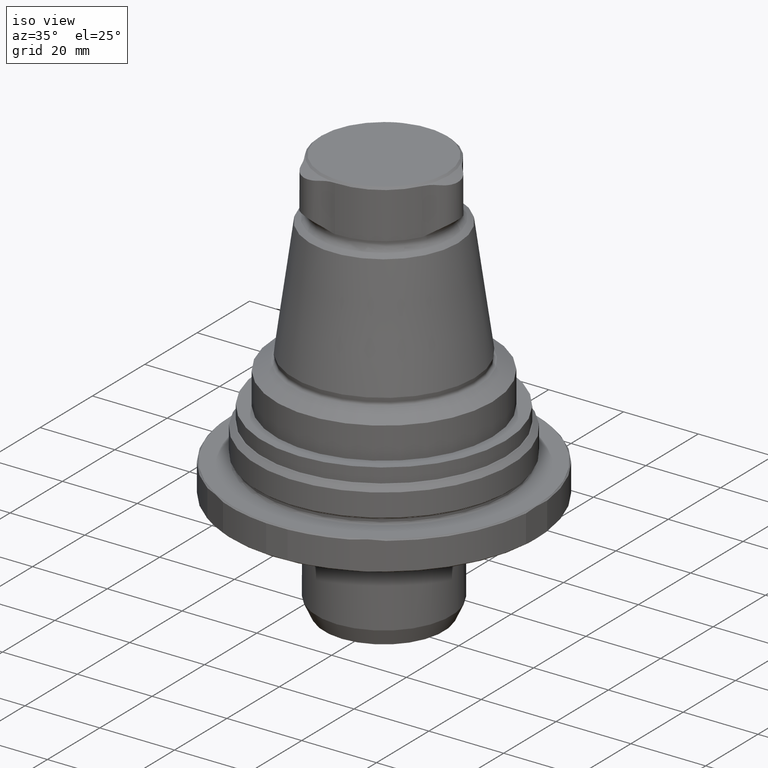
[diagram: clean part render]
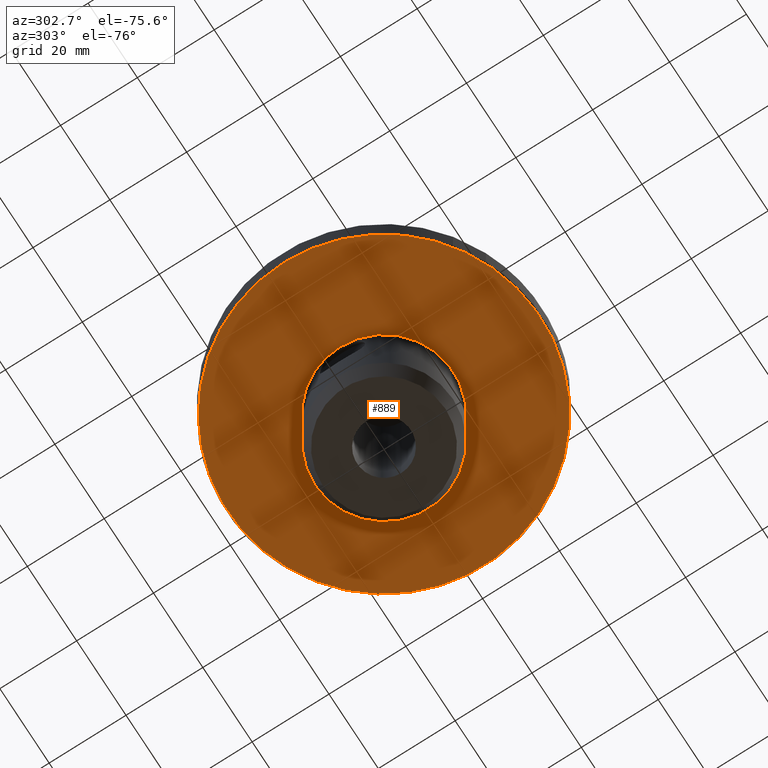
[diagram: tour spotlight — one face highlighted and labeled with its STEP entity id]
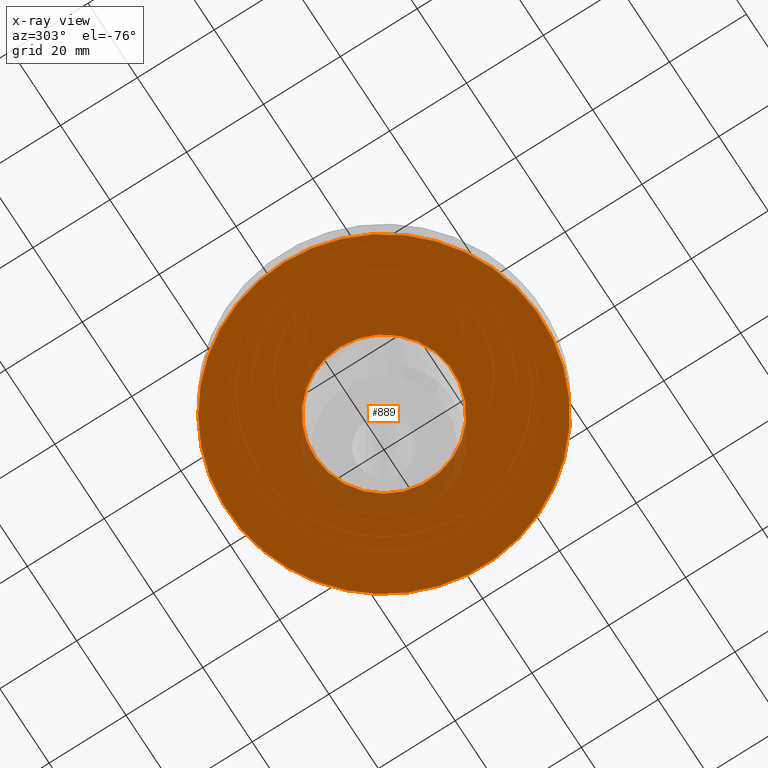
[diagram: x-ray of the same camera — body ghosted, this tour face saturated]
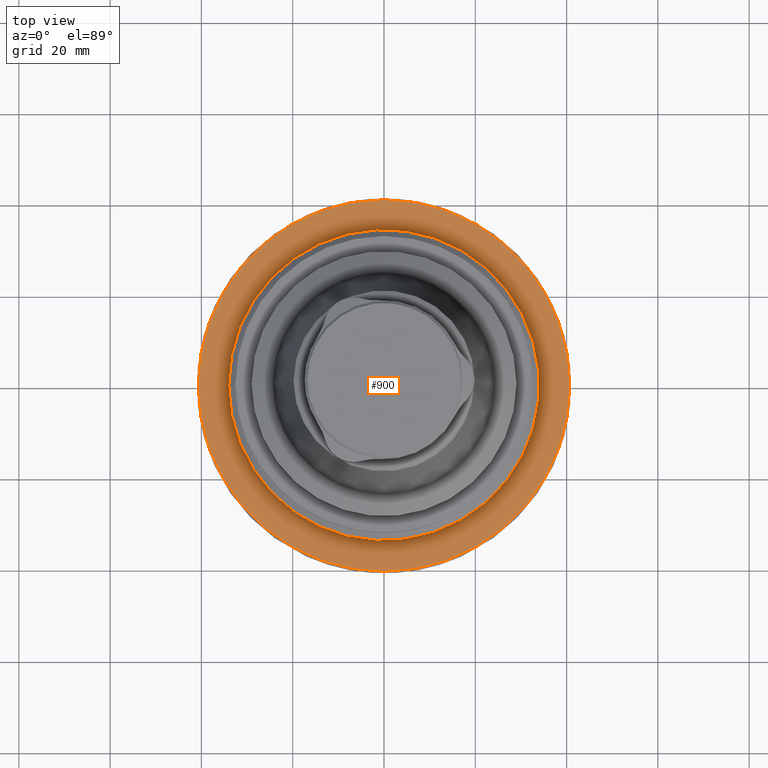
[diagram: tour spotlight — one face highlighted and labeled with its STEP entity id]
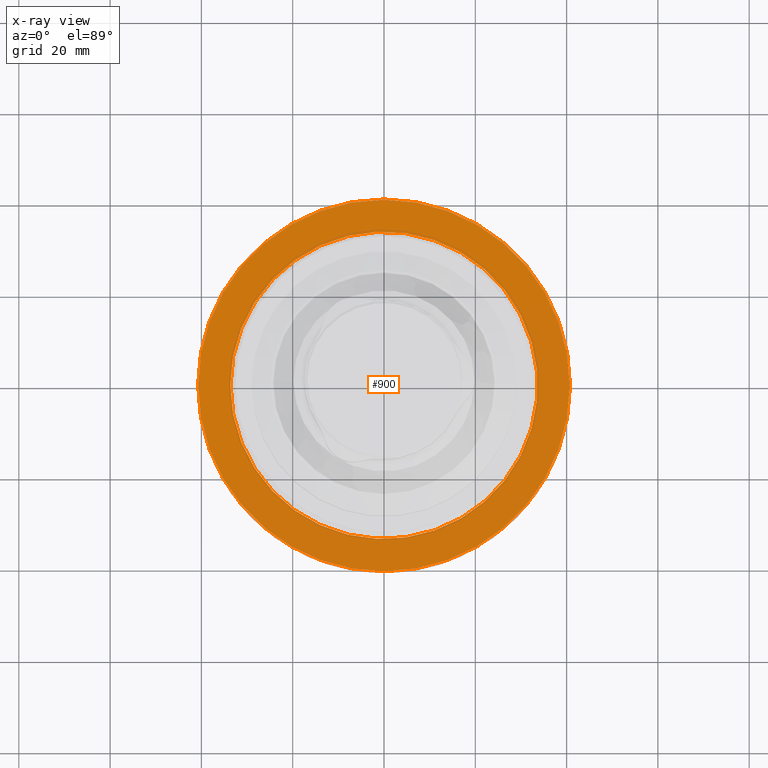
[diagram: x-ray of the same camera — body ghosted, this tour face saturated]
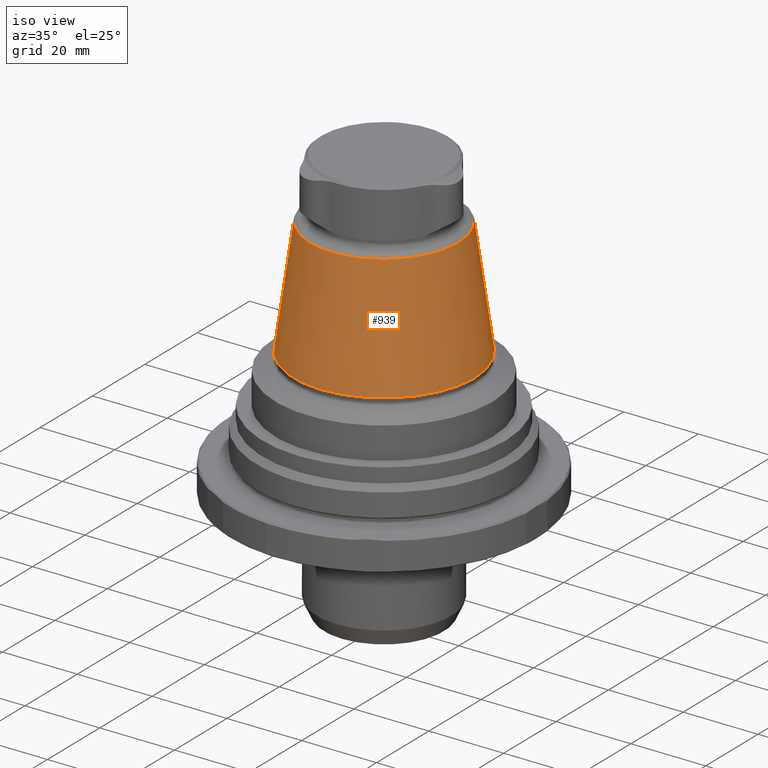
[diagram: tour spotlight — one face highlighted and labeled with its STEP entity id]
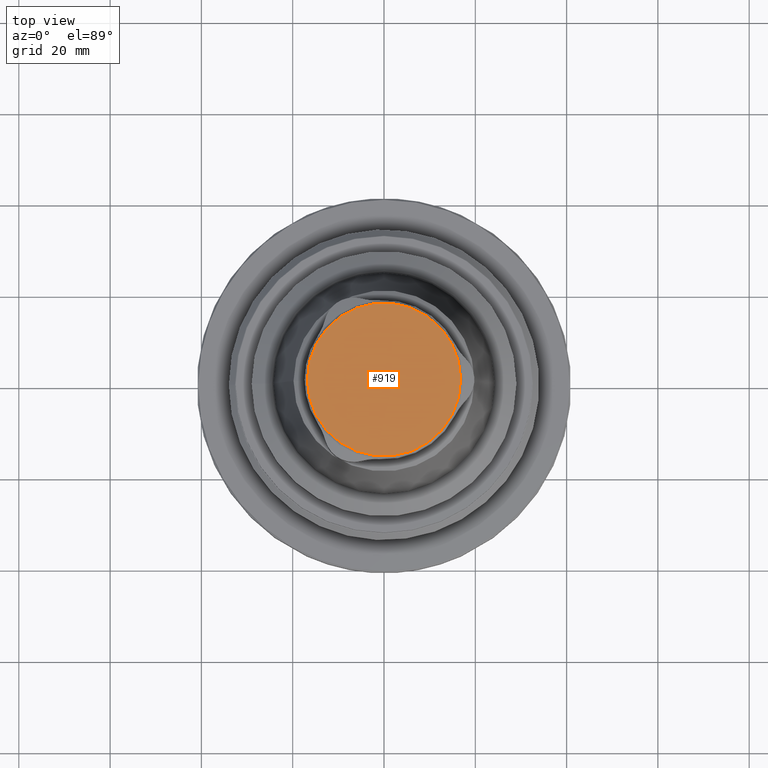
[diagram: tour spotlight — one face highlighted and labeled with its STEP entity id]
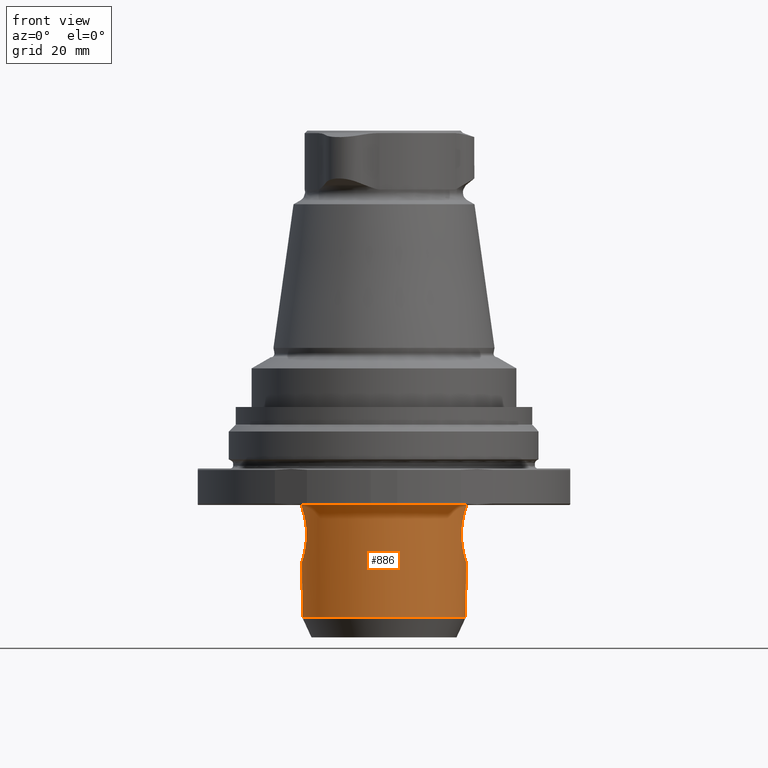
[diagram: tour spotlight — one face highlighted and labeled with its STEP entity id]
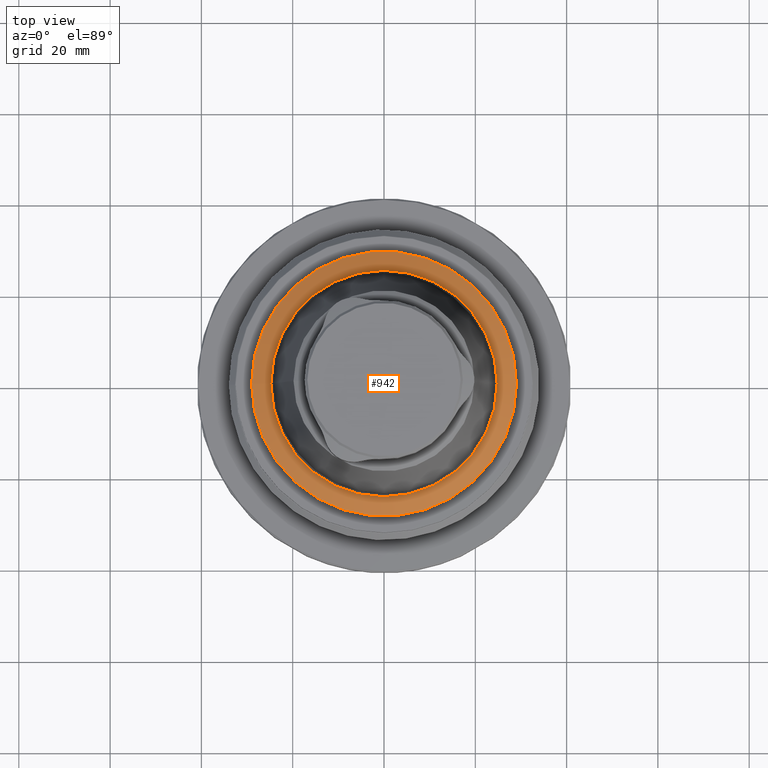
[diagram: tour spotlight — one face highlighted and labeled with its STEP entity id]
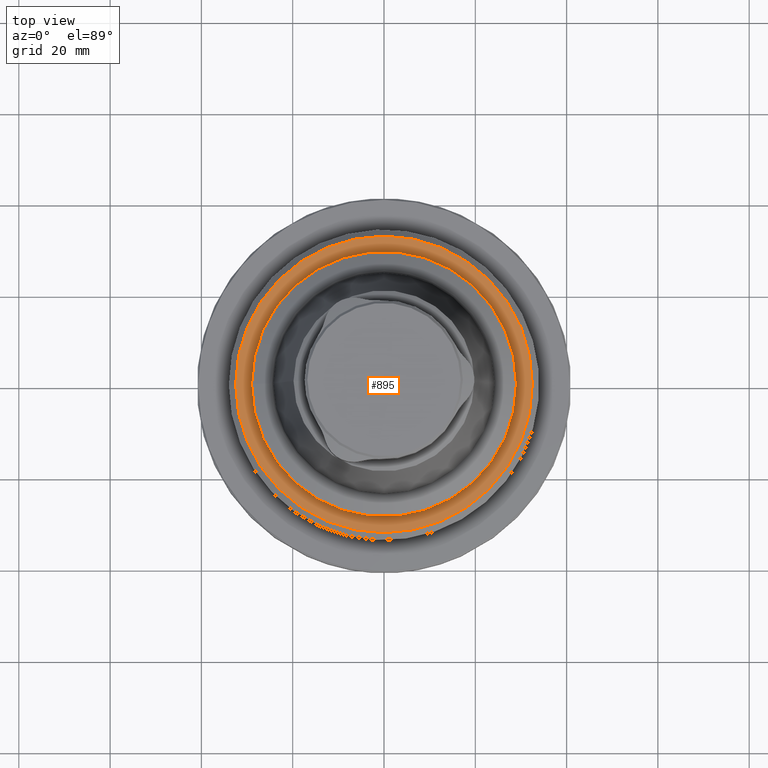
[diagram: tour spotlight — one face highlighted and labeled with its STEP entity id]
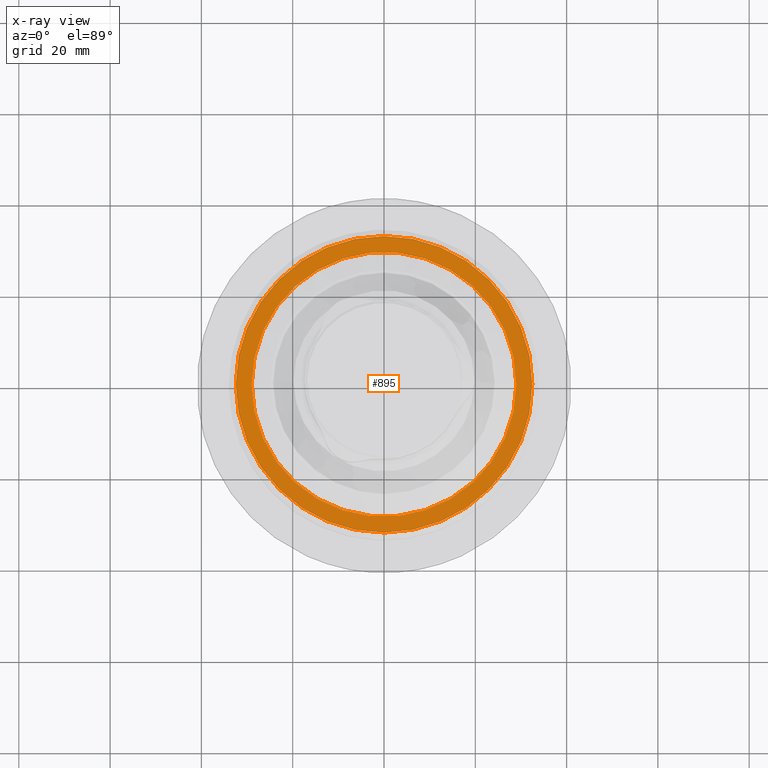
[diagram: x-ray of the same camera — body ghosted, this tour face saturated]
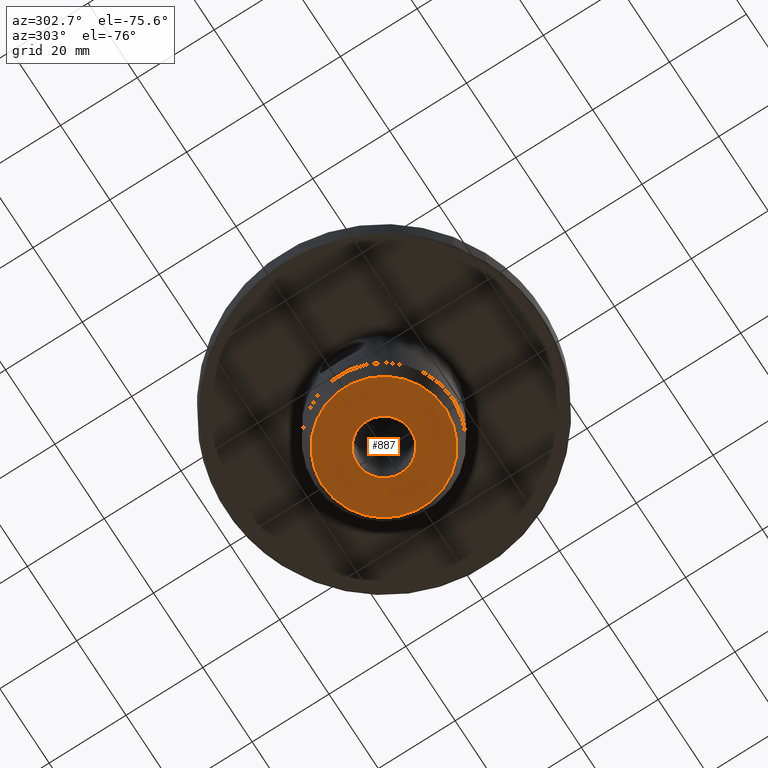
[diagram: tour spotlight — one face highlighted and labeled with its STEP entity id]
A machine part: a face-by-face anatomy tour. The part has 64 B-rep faces; the first image is the clean iso view, then the 8 largest visible faces are spotlighted one at a time (largest first), each with its STEP entity span.

Face 1 — auxiliary view, entity #889. An x-ray twin of the same camera follows (body ghosted, this face saturated) — the face is partly hidden behind the body. In plain terms, the highlighted planar face has unit normal (0, -0, -1).
Definition (entity closure, byte-faithful):
#96=PLANE('',#970);
#112=CIRCLE('',#964,18.);
#116=CIRCLE('',#971,40.7);
#173=ORIENTED_EDGE('',*,*,#412,.F.);
#174=ORIENTED_EDGE('',*,*,#417,.T.);
#412=EDGE_CURVE('',#535,#535,#112,.T.);
#417=EDGE_CURVE('',#540,#540,#116,.T.);
#535=VERTEX_POINT('',#1367);
#540=VERTEX_POINT('',#1398);
#676=EDGE_LOOP('',(#173));
#677=EDGE_LOOP('',(#174));
#771=FACE_BOUND('',#676,.T.);
#772=FACE_BOUND('',#677,.T.);
#889=ADVANCED_FACE('',(#771,#772),#96,.T.);
#964=AXIS2_PLACEMENT_3D('',#1366,#1084,#1085);
#970=AXIS2_PLACEMENT_3D('',#1396,#1096,#1097);
#971=AXIS2_PLACEMENT_3D('',#1397,#1098,#1099);
#1084=DIRECTION('',(1.22461692971323E-16,-7.49836836562635E-33,-1.));
#1085=DIRECTION('',(-1.,0.,-1.22461692971323E-16));
#1096=DIRECTION('',(1.22461692971323E-16,-7.49836836562635E-33,-1.));
#1097=DIRECTION('',(-1.,6.12303176911189E-17,-1.22461692971323E-16));
#1098=DIRECTION('',(-5.20001084984554E-33,-4.76419527885826E-18,-1.));
#1099=DIRECTION('',(-1.,0.,0.));
#1366=CARTESIAN_POINT('',(0.,0.,-8.99999999999999));
#1367=CARTESIAN_POINT('',(-18.,0.,-9.));
#1396=CARTESIAN_POINT('',(-30.5,1.86752468957913E-15,-9.));
#1397=CARTESIAN_POINT('',(7.88665112559661E-15,-8.38498369079058E-17,-9.00000000000001));
#1398=CARTESIAN_POINT('',(-40.7,-8.38498369079058E-17,-9.00000000000001));

Face 2 — top view, entity #900. An x-ray twin of the same camera follows (body ghosted, this face saturated) — the face is partly hidden behind the body. In plain terms, the highlighted planar face has unit normal (-0, -0, -1).
Definition (entity closure, byte-faithful):
#99=PLANE('',#993);
#127=CIRCLE('',#992,33.65);
#128=CIRCLE('',#994,40.7);
#195=ORIENTED_EDGE('',*,*,#428,.T.);
#196=ORIENTED_EDGE('',*,*,#429,.F.);
#428=EDGE_CURVE('',#551,#551,#127,.T.);
#429=EDGE_CURVE('',#552,#552,#128,.T.);
#551=VERTEX_POINT('',#1430);
#552=VERTEX_POINT('',#1433);
#698=EDGE_LOOP('',(#195));
#699=EDGE_LOOP('',(#196));
#793=FACE_BOUND('',#698,.T.);
#794=FACE_BOUND('',#699,.T.);
#900=ADVANCED_FACE('',(#793,#794),#99,.F.);
#992=AXIS2_PLACEMENT_3D('',#1429,#1140,#1141);
#993=AXIS2_PLACEMENT_3D('',#1431,#1142,#1143);
#994=AXIS2_PLACEMENT_3D('',#1432,#1144,#1145);
#1140=DIRECTION('',(-5.20001084984554E-33,-4.76419527885826E-18,-1.));
#1141=DIRECTION('',(-1.,0.,0.));
#1142=DIRECTION('',(-5.20001084984554E-33,-4.76419527885826E-18,-1.));
#1143=DIRECTION('',(-1.,0.,0.));
#1144=DIRECTION('',(-5.20001084984554E-33,-4.76419527885826E-18,-1.));
#1145=DIRECTION('',(-1.,0.,0.));
#1429=CARTESIAN_POINT('',(7.88665112559661E-15,-4.57362746770397E-17,-1.00000000000001));
#1430=CARTESIAN_POINT('',(-33.65,-4.57362746770397E-17,-1.00000000000001));
#1431=CARTESIAN_POINT('',(-33.65,-4.57362746770397E-17,-1.00000000000001));
#1432=CARTESIAN_POINT('',(7.88665112559661E-15,-4.57362746770397E-17,-1.00000000000001));
#1433=CARTESIAN_POINT('',(-40.7,-4.57362746770397E-17,-1.00000000000001));

Face 3 — iso view, entity #939. In plain terms, the highlighted conical surface has half-angle 7.95 deg.
Definition (entity closure, byte-faithful):
#92=CONICAL_SURFACE('',#1062,24.2110659529869,0.138753675533549);
#157=CIRCLE('',#1061,19.820622068747);
#158=CIRCLE('',#1063,24.2110659529869);
#392=ORIENTED_EDGE('',*,*,#526,.T.);
#393=ORIENTED_EDGE('',*,*,#527,.F.);
#526=EDGE_CURVE('',#618,#618,#157,.T.);
#527=EDGE_CURVE('',#619,#619,#158,.T.);
#618=VERTEX_POINT('',#1778);
#619=VERTEX_POINT('',#1781);
#744=EDGE_LOOP('',(#392));
#745=EDGE_LOOP('',(#393));
#839=FACE_BOUND('',#744,.T.);
#840=FACE_BOUND('',#745,.T.);
#939=ADVANCED_FACE('',(#839,#840),#92,.T.);
#1061=AXIS2_PLACEMENT_3D('',#1777,#1306,#1307);
#1062=AXIS2_PLACEMENT_3D('',#1779,#1308,#1309);
#1063=AXIS2_PLACEMENT_3D('',#1780,#1310,#1311);
#1306=DIRECTION('',(1.22461692971323E-16,-7.49836836562635E-33,-1.));
#1307=DIRECTION('',(-1.,6.12303176911189E-17,-1.22461692971323E-16));
#1308=DIRECTION('',(1.22461692971323E-16,-7.49836836562635E-33,-1.));
#1309=DIRECTION('',(-1.,6.12303176911189E-17,-1.22461692971323E-16));
#1310=DIRECTION('',(1.22461692971323E-16,-7.49836836562635E-33,-1.));
#1311=DIRECTION('',(-1.,6.12303176911189E-17,-1.22461692971323E-16));
#1777=CARTESIAN_POINT('',(1.97634923270405E-15,-1.21012491387068E-31,56.8624545642742));
#1778=CARTESIAN_POINT('',(-19.820622068747,1.21362298610498E-15,56.8624545642742));
#1779=CARTESIAN_POINT('',(5.82638272995627E-15,-3.56751265545271E-31,25.4237784865737));
#1780=CARTESIAN_POINT('',(5.82638272995627E-15,-3.56751265545271E-31,25.4237784865737));
#1781=CARTESIAN_POINT('',(-24.2110659529869,1.48245125994202E-15,25.4237784865737));

Face 4 — top view, entity #919. In plain terms, the highlighted planar face has unit normal (-0, 0, 1).
Definition (entity closure, byte-faithful):
#108=PLANE('',#1029);
#145=CIRCLE('',#1030,16.78);
#295=ORIENTED_EDGE('',*,*,#478,.F.);
#478=EDGE_CURVE('',#585,#585,#145,.T.);
#585=VERTEX_POINT('',#1582);
#720=EDGE_LOOP('',(#295));
#815=FACE_BOUND('',#720,.T.);
#919=ADVANCED_FACE('',(#815),#108,.T.);
#1029=AXIS2_PLACEMENT_3D('',#1580,#1230,#1231);
#1030=AXIS2_PLACEMENT_3D('',#1581,#1232,#1233);
#1230=DIRECTION('',(-1.22461692971323E-16,7.49836836562635E-33,1.));
#1231=DIRECTION('',(1.,-6.12303176911189E-17,1.22461692971323E-16));
#1232=DIRECTION('',(1.22461692971323E-16,-7.49836836562635E-33,-1.));
#1233=DIRECTION('',(-1.,6.12303176911189E-17,-1.22461692971323E-16));
#1580=CARTESIAN_POINT('',(-16.78,1.02744473085697E-15,73.));
#1581=CARTESIAN_POINT('',(1.18098243419732E-19,-7.23119296335328E-36,73.));
#1582=CARTESIAN_POINT('',(-16.78,1.02744473085697E-15,73.));

Face 5 — front view, entity #886. In plain terms, the highlighted cylindrical surface (bore or boss wall) has radius 18 mm, axis along (0, 0, -1).
Definition (entity closure, byte-faithful):
#112=CIRCLE('',#964,18.);
#113=CIRCLE('',#965,18.);
#165=ORIENTED_EDGE('',*,*,#411,.F.);
#166=ORIENTED_EDGE('',*,*,#412,.T.);
#167=ORIENTED_EDGE('',*,*,#413,.F.);
#168=ORIENTED_EDGE('',*,*,#414,.T.);
#411=EDGE_CURVE('',#534,#534,#626,.T.);
#412=EDGE_CURVE('',#535,#535,#112,.T.);
#413=EDGE_CURVE('',#536,#536,#113,.T.);
#414=EDGE_CURVE('',#537,#537,#627,.T.);
#534=VERTEX_POINT('',#1365);
#535=VERTEX_POINT('',#1367);
#536=VERTEX_POINT('',#1369);
#537=VERTEX_POINT('',#1389);
#626=B_SPLINE_CURVE_WITH_KNOTS('',3,(#1346,#1347,#1348,#1349,#1350,#1351,
#1352,#1353,#1354,#1355,#1356,#1357,#1358,#1359,#1360,#1361,#1362,#1363,
#1364),.UNSPECIFIED.,.T.,.F.,(1,1,1,1,1,1,1,1,1,1,1,1,1,1,1,1,1,1,1,1,1,
1,1),(-0.00708470168974245,-0.0047231344598283,-0.00236156722991415,5.07276649676178E-19,
0.00236156722991415,0.0047231344598283,0.00708470168974245,0.0094462689196566,
0.0118078361495708,0.0141694033794849,0.0165309706093991,0.0188925378393132,
0.0212541050692273,0.0236156722991415,0.0259772395290556,0.0283388067589698,
0.0307003739888839,0.0330619412187981,0.0354235084487123,0.0377850756786264,
0.0401466429085406,0.0425082101384547,0.0448697773683688),.UNSPECIFIED.);
#627=B_SPLINE_CURVE_WITH_KNOTS('',3,(#1370,#1371,#1372,#1373,#1374,#1375,
#1376,#1377,#1378,#1379,#1380,#1381,#1382,#1383,#1384,#1385,#1386,#1387,
#1388),.UNSPECIFIED.,.T.,.F.,(1,1,1,1,1,1,1,1,1,1,1,1,1,1,1,1,1,1,1,1,1,
1,1),(-0.0070869858027963,-0.0047246572018642,-0.0023623286009321,3.50493393529532E-19,
0.0023623286009321,0.0047246572018642,0.0070869858027963,0.0094493144037284,
0.0118116430046605,0.0141739716055926,0.0165363002065247,0.0188986288074568,
0.0212609574083889,0.023623286009321,0.0259856146102531,0.0283479432111852,
0.0307102718121173,0.0330726004130494,0.0354349290139815,0.0377972576149136,
0.0401595862158457,0.0425219148167778,0.0448842434177099),.UNSPECIFIED.);
#668=EDGE_LOOP('',(#165));
#669=EDGE_LOOP('',(#166));
#670=EDGE_LOOP('',(#167));
#671=EDGE_LOOP('',(#168));
#763=FACE_BOUND('',#668,.T.);
#764=FACE_BOUND('',#669,.T.);
#765=FACE_BOUND('',#670,.T.);
#766=FACE_BOUND('',#671,.T.);
#858=CYLINDRICAL_SURFACE('',#963,18.);
#886=ADVANCED_FACE('',(#763,#764,#765,#766),#858,.T.);
#963=AXIS2_PLACEMENT_3D('',#1345,#1082,#1083);
#964=AXIS2_PLACEMENT_3D('',#1366,#1084,#1085);
#965=AXIS2_PLACEMENT_3D('',#1368,#1086,#1087);
#1082=DIRECTION('',(0.,0.,-1.));
#1083=DIRECTION('',(0.,1.,0.));
#1084=DIRECTION('',(1.22461692971323E-16,-7.49836836562635E-33,-1.));
#1085=DIRECTION('',(-1.,0.,-1.22461692971323E-16));
#1086=DIRECTION('',(0.,0.,-1.));
#1087=DIRECTION('',(0.,1.,0.));
#1345=CARTESIAN_POINT('',(0.,0.,-40.));
#1346=CARTESIAN_POINT('',(-17.889710576669,2.37436773295693,-21.1800229364138));
#1347=CARTESIAN_POINT('',(-18.0551148958687,-0.000196721668239378,-21.6598839655699));
#1348=CARTESIAN_POINT('',(-17.8898298398563,-2.37358084628398,-21.1804412013061));
#1349=CARTESIAN_POINT('',(-17.4941715621497,-4.35273809991191,-19.8486602882034));
#1350=CARTESIAN_POINT('',(-17.0884728213579,-5.68015412581998,-17.8719154463857));
#1351=CARTESIAN_POINT('',(-16.9118299480978,-6.15922628696045,-15.5054829884364));
#1352=CARTESIAN_POINT('',(-17.087586968013,-5.68293198395303,-13.1312414745139));
#1353=CARTESIAN_POINT('',(-17.4949912914916,-4.3500475094479,-11.1479808757061));
#1354=CARTESIAN_POINT('',(-17.8900605955102,-2.3707486097815,-9.8190175617419));
#1355=CARTESIAN_POINT('',(-18.0548297420023,-0.00293705979918289,-9.34094195871963));
#1356=CARTESIAN_POINT('',(-17.8906194725714,2.36806755921504,-9.81721749510792));
#1357=CARTESIAN_POINT('',(-17.494797583745,4.35083021522607,-11.1486013988005));
#1358=CARTESIAN_POINT('',(-17.088057649307,5.68143183439361,-13.1295092779311));
#1359=CARTESIAN_POINT('',(-16.911823095961,6.15924368991009,-15.4992906585518));
#1360=CARTESIAN_POINT('',(-17.0880265007755,5.68159328416338,-17.8703667090484));
#1361=CARTESIAN_POINT('',(-17.4944232749279,4.35172689074806,-19.8496070202362));
#1362=CARTESIAN_POINT('',(-17.889710576669,2.37436773295693,-21.1800229364138));
#1363=CARTESIAN_POINT('',(-18.0551148958687,-0.000196721668239378,-21.6598839655699));
#1364=CARTESIAN_POINT('',(-17.8898298398563,-2.37358084628398,-21.1804412013061));
#1365=CARTESIAN_POINT('',(-18.,5.22525283513252E-16,-21.4999999999999));
#1366=CARTESIAN_POINT('',(0.,0.,-8.99999999999999));
#1367=CARTESIAN_POINT('',(-18.,0.,-9.));
#1368=CARTESIAN_POINT('',(0.,0.,-33.7109861589809));
#1369=CARTESIAN_POINT('',(0.,18.,-33.7109861589809));
#1370=CARTESIAN_POINT('',(17.8894885199056,2.37495503398702,-21.1789471106745));
#1371=CARTESIAN_POINT('',(18.055221154206,-0.00020233021876063,-21.6658891915709));
#1372=CARTESIAN_POINT('',(17.8896268632704,-2.37414571311198,-21.1794397177996));
#1373=CARTESIAN_POINT('',(17.4952799454344,-4.34735750848469,-19.8371011075525));
#1374=CARTESIAN_POINT('',(17.0914175317597,-5.67151991483547,-17.8581770746456));
#1375=CARTESIAN_POINT('',(16.9119420857732,-6.15892095011146,-15.4941345133221));
#1376=CARTESIAN_POINT('',(17.084327966712,-5.6924077959108,-13.1169446242468));
#1377=CARTESIAN_POINT('',(17.4934395726579,-4.35716443011941,-11.1326026774858));
#1378=CARTESIAN_POINT('',(17.8901592184586,-2.37139947919,-9.81141044809754));
#1379=CARTESIAN_POINT('',(18.0548154149428,-0.00228312850455419,-9.33915041057728));
#1380=CARTESIAN_POINT('',(17.8905785583381,2.36950015997071,-9.81004598648711));
#1381=CARTESIAN_POINT('',(17.4932370709725,4.35791329416312,-11.1333557644709));
#1382=CARTESIAN_POINT('',(17.0848491097876,5.69077450405614,-13.1147622735233));
#1383=CARTESIAN_POINT('',(16.9118741855073,6.15910495116715,-15.4885806289264));
#1384=CARTESIAN_POINT('',(17.091130177741,5.67252415209171,-17.8576883808685));
#1385=CARTESIAN_POINT('',(17.4956851944784,4.34567084238064,-19.8385886485611));
#1386=CARTESIAN_POINT('',(17.8894885199056,2.37495503398702,-21.1789471106745));
#1387=CARTESIAN_POINT('',(18.055221154206,-0.00020233021876063,-21.6658891915709));
#1388=CARTESIAN_POINT('',(17.8896268632704,-2.37414571311198,-21.1794397177996));
#1389=CARTESIAN_POINT('',(18.,-3.61095566678695E-16,-21.5036572657929));

Face 6 — top view, entity #942. In plain terms, the highlighted conical surface has half-angle 60 deg.
Definition (entity closure, byte-faithful):
#94=CONICAL_SURFACE('',#1068,29.,1.0471975511966);
#160=CIRCLE('',#1067,24.8);
#161=CIRCLE('',#1069,29.);
#398=ORIENTED_EDGE('',*,*,#529,.T.);
#399=ORIENTED_EDGE('',*,*,#530,.F.);
#529=EDGE_CURVE('',#621,#621,#160,.T.);
#530=EDGE_CURVE('',#622,#622,#161,.T.);
#621=VERTEX_POINT('',#1787);
#622=VERTEX_POINT('',#1790);
#750=EDGE_LOOP('',(#398));
#751=EDGE_LOOP('',(#399));
#845=FACE_BOUND('',#750,.T.);
#846=FACE_BOUND('',#751,.T.);
#942=ADVANCED_FACE('',(#845,#846),#94,.T.);
#1067=AXIS2_PLACEMENT_3D('',#1786,#1318,#1319);
#1068=AXIS2_PLACEMENT_3D('',#1788,#1320,#1321);
#1069=AXIS2_PLACEMENT_3D('',#1789,#1322,#1323);
#1318=DIRECTION('',(1.22461692971323E-16,-7.49836836562635E-33,-1.));
#1319=DIRECTION('',(-1.,6.12303176911189E-17,-1.22461692971323E-16));
#1320=DIRECTION('',(1.22461692971323E-16,-7.49836836562635E-33,-1.));
#1321=DIRECTION('',(-1.,6.12303176911189E-17,-1.22461692971323E-16));
#1322=DIRECTION('',(1.22461692971323E-16,-7.49836836562635E-33,-1.));
#1323=DIRECTION('',(-1.,6.12303176911189E-17,-1.22461692971323E-16));
#1786=CARTESIAN_POINT('',(6.07951171463002E-15,-3.72250433693675E-31,23.3567730538379));
#1787=CARTESIAN_POINT('',(-24.8,1.51851187873975E-15,23.3567730538379));
#1788=CARTESIAN_POINT('',(6.37646553852014E-15,-3.9043301067006E-31,20.9319019232415));
#1789=CARTESIAN_POINT('',(6.37646553852014E-15,-3.9043301067006E-31,20.9319019232415));
#1790=CARTESIAN_POINT('',(-29.,1.77567921304245E-15,20.9319019232415));

Face 7 — top view, entity #895. An x-ray twin of the same camera follows (body ghosted, this face saturated) — the face is partly hidden behind the body. In plain terms, the highlighted planar face has unit normal (0, -0, 1).
Definition (entity closure, byte-faithful):
#97=PLANE('',#983);
#123=CIRCLE('',#984,32.48);
#124=CIRCLE('',#985,29.);
#185=ORIENTED_EDGE('',*,*,#424,.F.);
#186=ORIENTED_EDGE('',*,*,#425,.T.);
#424=EDGE_CURVE('',#547,#547,#123,.T.);
#425=EDGE_CURVE('',#548,#548,#124,.T.);
#547=VERTEX_POINT('',#1418);
#548=VERTEX_POINT('',#1420);
#688=EDGE_LOOP('',(#185));
#689=EDGE_LOOP('',(#186));
#783=FACE_BOUND('',#688,.T.);
#784=FACE_BOUND('',#689,.T.);
#895=ADVANCED_FACE('',(#783,#784),#97,.T.);
#983=AXIS2_PLACEMENT_3D('',#1416,#1122,#1123);
#984=AXIS2_PLACEMENT_3D('',#1417,#1124,#1125);
#985=AXIS2_PLACEMENT_3D('',#1419,#1126,#1127);
#1122=DIRECTION('',(5.2112629750951E-18,-6.90472121537616E-17,1.));
#1123=DIRECTION('',(2.8327492261615E-16,1.,6.90472121537612E-17));
#1124=DIRECTION('',(-5.2112629750951E-18,6.90472121537616E-17,-1.));
#1125=DIRECTION('',(-1.,6.12303176911188E-17,1.08491142720197E-17));
#1126=DIRECTION('',(1.22461692971323E-16,-7.49836836562635E-33,-1.));
#1127=DIRECTION('',(-1.,6.12303176911189E-17,-1.22461692971323E-16));
#1416=CARTESIAN_POINT('',(7.41400110335705E-15,-9.52360330964884E-18,12.46));
#1417=CARTESIAN_POINT('',(7.41400110335705E-15,-9.52360330964884E-18,12.46));
#1418=CARTESIAN_POINT('',(-32.48,1.97923711529789E-15,12.46));
#1419=CARTESIAN_POINT('',(7.4139489907273E-15,-4.53958452047983E-31,12.46));
#1420=CARTESIAN_POINT('',(-29.,1.77567921304245E-15,12.46));

Face 8 — auxiliary view, entity #887. In plain terms, the highlighted planar face has unit normal (0, 0, -1).
Definition (entity closure, byte-faithful):
#95=PLANE('',#966);
#114=CIRCLE('',#967,7.);
#115=CIRCLE('',#968,16.);
#169=ORIENTED_EDGE('',*,*,#415,.T.);
#170=ORIENTED_EDGE('',*,*,#416,.T.);
#415=EDGE_CURVE('',#538,#538,#114,.T.);
#416=EDGE_CURVE('',#539,#539,#115,.T.);
#538=VERTEX_POINT('',#1392);
#539=VERTEX_POINT('',#1394);
#672=EDGE_LOOP('',(#169));
#673=EDGE_LOOP('',(#170));
#767=FACE_BOUND('',#672,.T.);
#768=FACE_BOUND('',#673,.T.);
#887=ADVANCED_FACE('',(#767,#768),#95,.T.);
#966=AXIS2_PLACEMENT_3D('',#1390,#1088,#1089);
#967=AXIS2_PLACEMENT_3D('',#1391,#1090,#1091);
#968=AXIS2_PLACEMENT_3D('',#1393,#1092,#1093);
#1088=DIRECTION('',(0.,0.,-1.));
#1089=DIRECTION('',(0.,1.,0.));
#1090=DIRECTION('',(0.,0.,1.));
#1091=DIRECTION('',(1.,0.,0.));
#1092=DIRECTION('',(0.,0.,-1.));
#1093=DIRECTION('',(0.,1.,0.));
#1390=CARTESIAN_POINT('',(0.,16.,-38.));
#1391=CARTESIAN_POINT('',(0.,0.,-38.));
#1392=CARTESIAN_POINT('',(7.,0.,-38.));
#1393=CARTESIAN_POINT('',(0.,0.,-38.));
#1394=CARTESIAN_POINT('',(0.,16.,-38.));